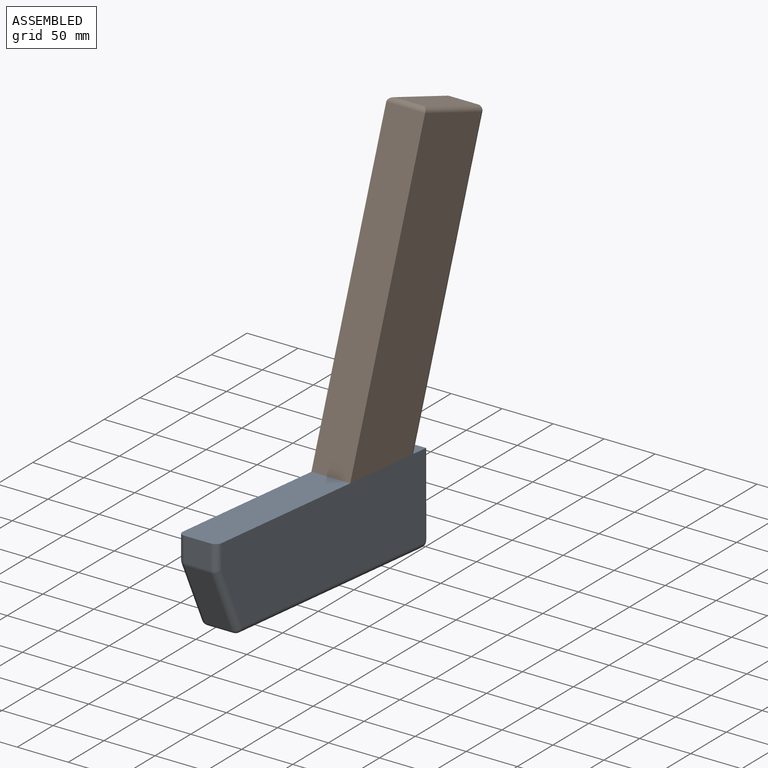
[diagram: assembled view]
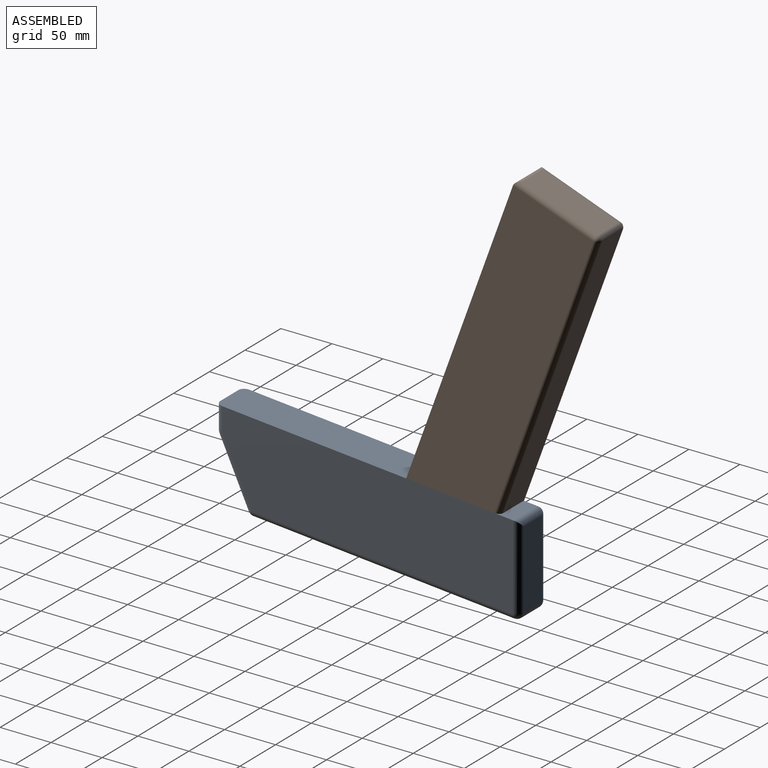
[diagram: assembled view, second angle]
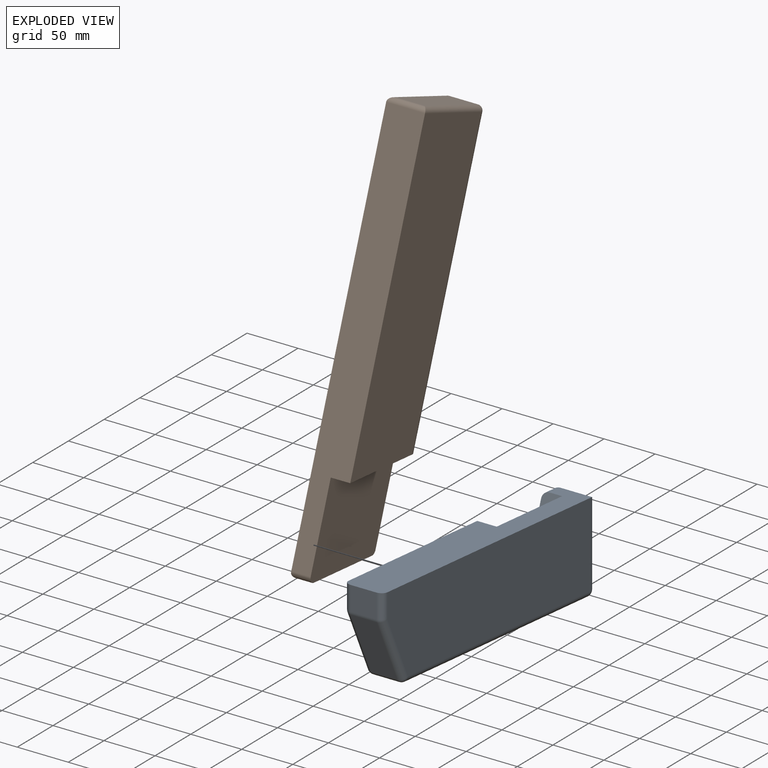
[diagram: exploded view]
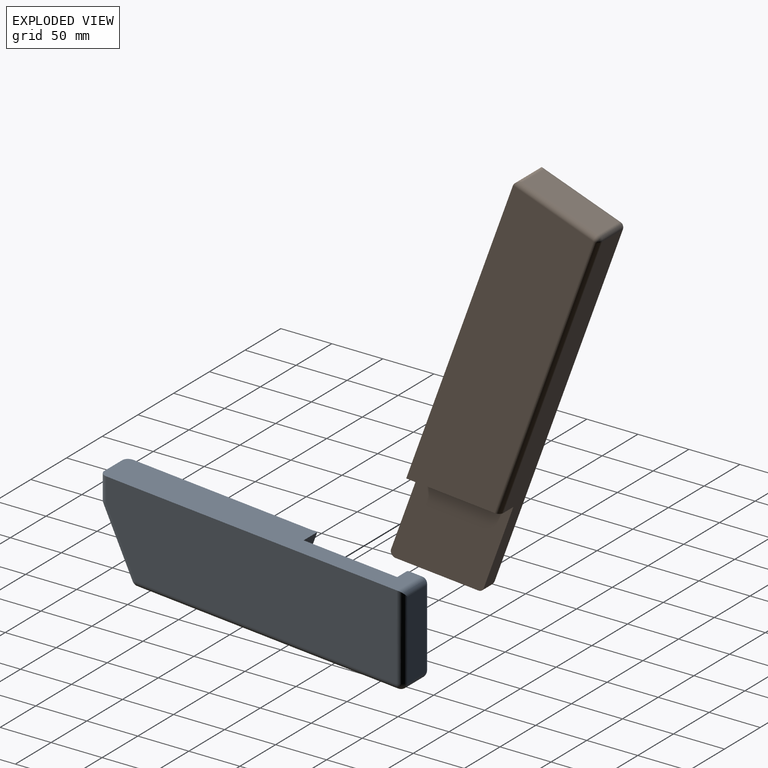
[diagram: exploded view, second angle]
ASSEMBLY  parts=2 mates=3
PART A: 32 faces, bbox 38.1x297.3x114.7 mm
  f0: plane 77.8x41.9mm, normal (-1,0,0), area 2172.8mm2, adj f9,f11,f13,f14
  f1: plane 255.72x25.4mm, normal (0,-0.09,-1), area 5351.3mm2, adj f8,f9,f10,f14,f19,f25,f29,f31
  f2: plane 291.52x38.1mm, normal (0,0.09,1), area 9294.3mm2, adj f3,f6,f7,f8,f9,f10,f11,f15
  f3: plane 25.4x23.99mm, normal (0,-1,0), area 609.4mm2, adj f2,f17,f22,f23
  f4: plane 61.96x28.89mm, normal (0,-0.91,-0.42), area 1736.4mm2, adj f23,f24,f28,f29
  f5: plane 76.49x25.4mm, normal (0,1,0), area 1942.9mm2, adj f13,f15,f18,f19
  f6: plane 284.61x107.77mm, normal (1,0,0), area 22726.2mm2, adj f2,f17,f18,f24,f25
  f7: plane 180.26x96.08mm, normal (-1,0,0), area 12868mm2, adj f2,f8,f22,f28,f31
  f8: plane 86.49x31.48mm, normal (0,0.94,-0.34), area 1744.3mm2, adj f1,f2,f7,f10,f31
  f9: plane 86.49x31.48mm, normal (0,-0.94,0.34), area 1735.4mm2, adj f0,f1,f2,f10,f11,f14
  f10: plane 123.16x94.51mm, normal (-1,0,0), area 8182mm2, adj f1,f2,f8,f9
  f11: cylinder r=6.35mm len=15.47mm, axis (0,-1,0.09), area 138.5mm2, adj f0,f2,f9,f12
  f12: sphere r=6.35mm, area 59.8mm2, adj f11,f13,f15
  f13: cylinder r=6.35mm len=76.49mm, axis (0,0,1), area 763mm2, adj f0,f5,f12,f16
  f14: cylinder r=6.35mm len=44.14mm, axis (0,1,-0.09), area 430.3mm2, adj f0,f1,f9,f16
  f15: cylinder r=6.35mm len=31.73mm, axis (-1,0,0), area 276.1mm2, adj f2,f5,f12,f18
  f16: sphere r=6.35mm, area 66.9mm2, adj f13,f14,f19
  f17: cylinder r=6.35mm len=23.99mm, axis (0,0,1), area 237.3mm2, adj f2,f3,f6,f20
  f18: cylinder r=6.35mm len=82.87mm, axis (0,0,-1), area 803.3mm2, adj f2,f5,f6,f15,f21
  f19: cylinder r=6.35mm len=25.4mm, axis (-1,0,0), area 267.4mm2, adj f1,f5,f16,f21
  f20: sphere r=6.35mm, area 17.6mm2, adj f17,f23,f24
  f21: sphere r=6.35mm, area 66.9mm2, adj f18,f19,f25
  f22: cylinder r=6.35mm len=23.99mm, axis (0,0,-1), area 237.3mm2, adj f2,f3,f7,f26
  f23: cylinder r=6.35mm len=25.4mm, axis (-1,0,0), area 70.4mm2, adj f3,f4,f20,f26
  f24: cylinder r=6.35mm len=64.64mm, axis (0,-0.42,0.91), area 681.9mm2, adj f4,f6,f20,f27
  f25: cylinder r=6.35mm len=256.28mm, axis (0,-1,0.09), area 2560.5mm2, adj f1,f6,f21,f27
  f26: sphere r=6.35mm, area 17.6mm2, adj f22,f23,f28
  f27: sphere r=6.35mm, area 42.2mm2, adj f24,f25,f29
  f28: cylinder r=6.35mm len=64.64mm, axis (0,0.42,-0.91), area 681.9mm2, adj f4,f7,f26,f30
  f29: cylinder r=6.35mm len=25.4mm, axis (1,0,0), area 168.9mm2, adj f1,f4,f27,f30
  f30: sphere r=6.35mm, area 42.2mm2, adj f28,f29,f31
  f31: cylinder r=6.35mm len=122.7mm, axis (0,1,-0.09), area 1212.2mm2, adj f1,f7,f8,f30
PART B: 20 faces, bbox 38.1x217.4x383.6 mm
  f0: plane 81.21x13.97mm, normal (0,-0.09,-1), area 1138.8mm2, adj f6,f8,f9,f10
  f1: plane 345.1x125.61mm, normal (0,0.94,-0.34), area 9073.5mm2, adj f6,f7,f10,f12,f13,f14
  f2: plane 73.99x27.94mm, normal (0,0.34,0.94), area 2200mm2, adj f14,f17,f18,f19
  f3: plane 364.93x132.82mm, normal (0,-0.94,0.34), area 13228.7mm2, adj f4,f5,f6,f7,f8,f19
  f4: plane 295.18x183.45mm, normal (1,0,0), area 24713.5mm2, adj f3,f7,f12,f17
  f5: plane 373.77x211.88mm, normal (-1,0,0), area 31724.2mm2, adj f3,f8,f9,f13,f18
  f6: plane 120.13x91.24mm, normal (1,0,0), area 7890.3mm2, adj f0,f1,f3,f7,f8,f10
  f7: plane 91.69x19.05mm, normal (0,-0.09,-1), area 1747.6mm2, adj f1,f3,f4,f6,f12
  f8: cylinder r=5.08mm len=19.05mm, axis (-1,0,0), area 162.6mm2, adj f0,f3,f5,f6,f9
  f9: cylinder r=5.08mm len=86.71mm, axis (0,1,-0.09), area 676.3mm2, adj f0,f5,f8,f11
  f10: cylinder r=5.08mm len=13.97mm, axis (-1,0,0), area 92.9mm2, adj f0,f1,f6,f11
  f11: sphere r=5.08mm, area 33.8mm2, adj f9,f10,f13
  f12: cylinder r=5.08mm len=268.24mm, axis (0,-0.34,-0.94), area 2256.2mm2, adj f1,f4,f7,f15
  f13: cylinder r=5.08mm len=346.84mm, axis (0,0.34,0.94), area 2930.5mm2, adj f1,f5,f11,f16
  f14: cylinder r=5.08mm len=27.94mm, axis (1,0,0), area 223mm2, adj f1,f2,f15,f16
  f15: sphere r=5.08mm, area 40.5mm2, adj f12,f14,f17
  f16: sphere r=5.08mm, area 40.5mm2, adj f13,f14,f18
  f17: cylinder r=5.08mm len=80.5mm, axis (0,0.94,-0.34), area 654.1mm2, adj f2,f4,f15,f19
  f18: cylinder r=5.08mm len=80.5mm, axis (0,-0.94,0.34), area 654.1mm2, adj f2,f5,f16,f19
  f19: cylinder r=5.08mm len=38.1mm, axis (1,0,0), area 274.6mm2, adj f2,f3,f17,f18
PLACE A t=(-25.57,87.51,-196.95)mm
PLACE B t=(-25.57,38.09,-278.83)mm
MATE planar B.f6 <-> A.f10  axis (1,0,0) through (-6.52,7.52,-232.98)mm
MATE planar A.f2 <-> B.f7  axis (0,0.09,1) through (-4.58,-81.39,-182.17)mm
MATE planar B.f1 <-> A.f9  axis (0,0.94,-0.34) through (-7.44,108.55,-85.25)mm
